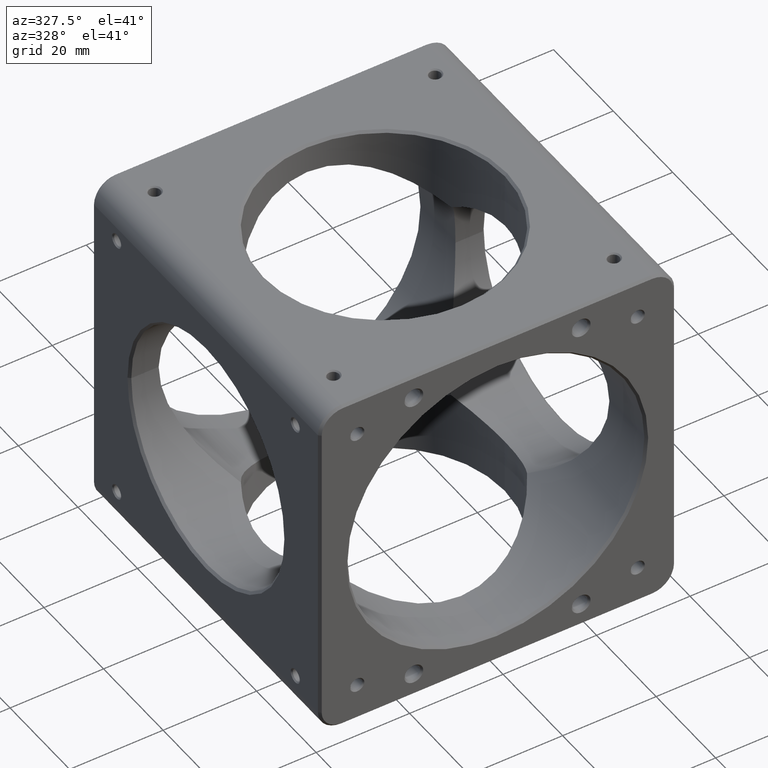
[diagram: clean part render]
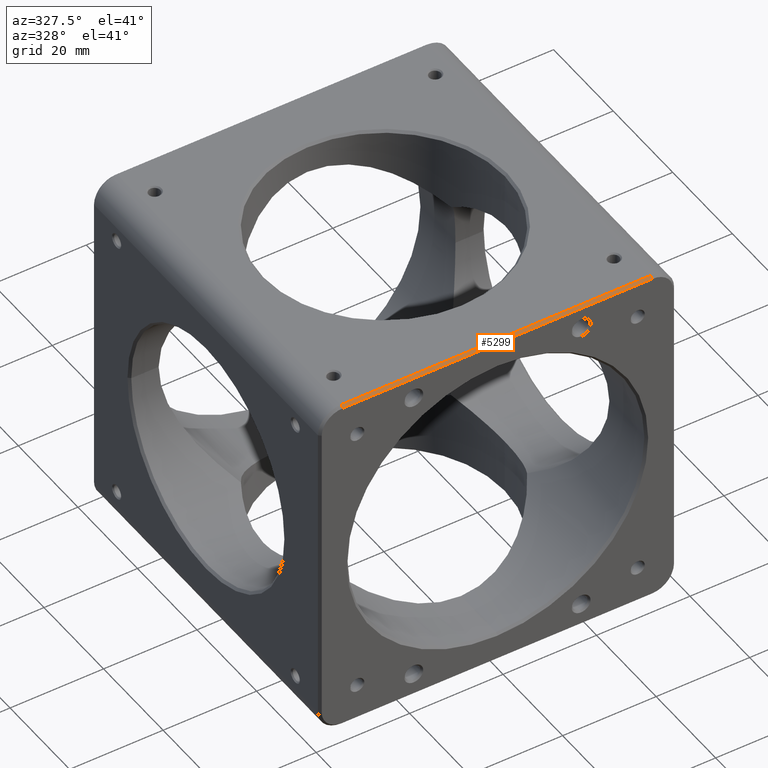
[diagram: same view with one face highlighted and labeled with its STEP entity id]
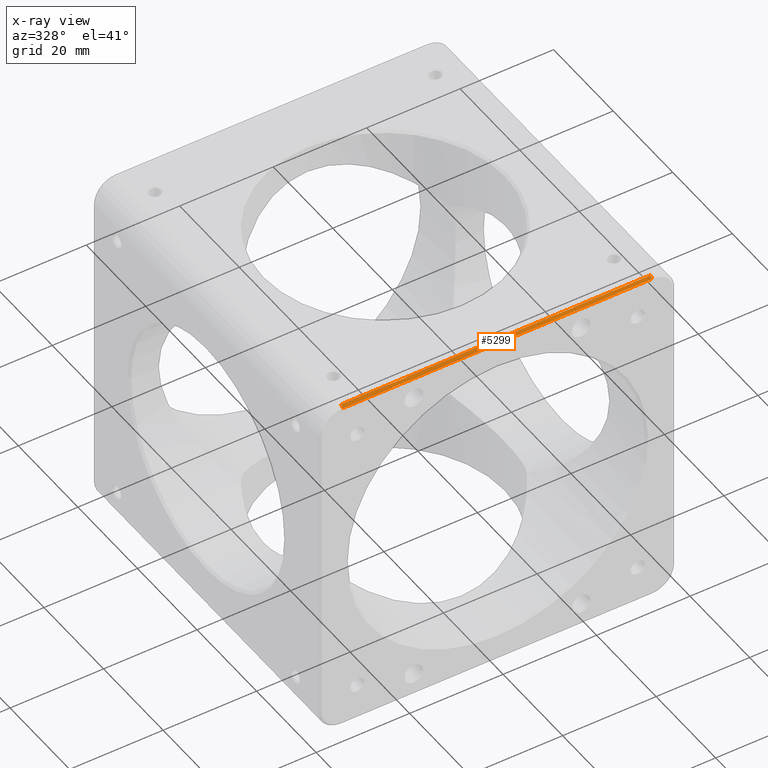
[diagram: x-ray of the same camera — body ghosted, the highlighted face saturated]
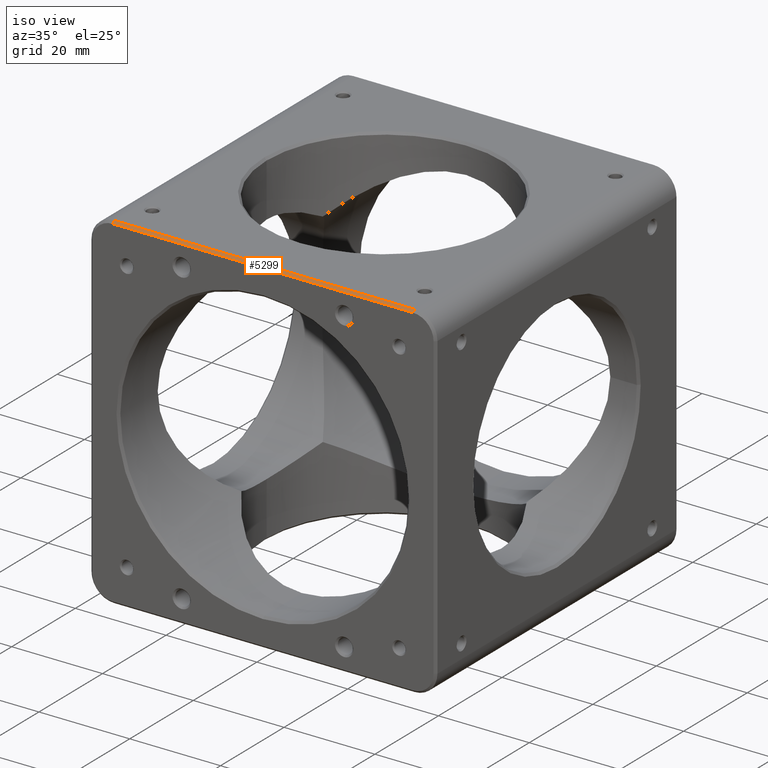
[diagram: same view with one face highlighted and labeled with its STEP entity id]
A machine part, auxiliary view. The second image highlights one B-rep face of the part: STEP entity #5299.
The next image is the same camera in x-ray: the body ghosted, the highlighted face saturated — about 0% of this face is hidden behind the body in this view.
A second angle (iso view) of the same face is appended — the face is thin or edge-on in the first view.
In plain terms, the highlighted planar face has unit normal (-0, -0.7071, 0.7071).
Its self-contained STEP definition (entity closure, byte-faithful):
#41 = ORIENTED_EDGE ( 'NONE', *, *, #5820, .T. ) ;
#46 = CARTESIAN_POINT ( 'NONE',  ( 0.0000000000000000000, -37.60000000000000853, 38.10000000000000142 ) ) ;
#58 = VERTEX_POINT ( 'NONE', #4810 ) ;
#267 = VECTOR ( 'NONE', #5496, 1000.000000000000114 ) ;
#650 = LINE ( 'NONE', #3424, #4330 ) ;
#837 = CARTESIAN_POINT ( 'NONE',  ( 33.10000000000000853, -37.60000000000002274, 38.10000000000000142 ) ) ;
#993 = VECTOR ( 'NONE', #5223, 1000.000000000000000 ) ;
#1907 = DIRECTION ( 'NONE',  ( -0.0000000000000000000, -0.7071067811865475727, 0.7071067811865475727 ) ) ;
#2195 = EDGE_CURVE ( 'NONE', #4326, #2331, #4042, .T. ) ;
#2331 = VERTEX_POINT ( 'NONE', #837 ) ;
#2519 = VERTEX_POINT ( 'NONE', #5238 ) ;
#3031 = DIRECTION ( 'NONE',  ( 1.000000000000000000, 0.0000000000000000000, 0.0000000000000000000 ) ) ;
#3381 = DIRECTION ( 'NONE',  ( 0.0000000000000000000, -0.7071067811865573427, -0.7071067811865376918 ) ) ;
#3424 = CARTESIAN_POINT ( 'NONE',  ( 33.09999999999998721, -37.60000000000000853, 38.10000000000000142 ) ) ;
#3733 = ORIENTED_EDGE ( 'NONE', *, *, #6116, .F. ) ;
#3820 = CARTESIAN_POINT ( 'NONE',  ( -33.09999999999999432, -38.10000000000000853, 37.60000000000000142 ) ) ;
#3837 = DIRECTION ( 'NONE',  ( -1.000000000000000000, 0.0000000000000000000, -0.0000000000000000000 ) ) ;
#4042 = LINE ( 'NONE', #4488, #267 ) ;
#4176 = LINE ( 'NONE', #5755, #4915 ) ;
#4326 = VERTEX_POINT ( 'NONE', #5688 ) ;
#4330 = VECTOR ( 'NONE', #3031, 1000.000000000000000 ) ;
#4350 = EDGE_CURVE ( 'NONE', #2519, #2331, #650, .T. ) ;
#4488 = CARTESIAN_POINT ( 'NONE',  ( 33.10000000000000853, -38.10000000000000853, 37.60000000000002984 ) ) ;
#4616 = LINE ( 'NONE', #3820, #993 ) ;
#4810 = CARTESIAN_POINT ( 'NONE',  ( -33.09999999999999432, -38.10000000000000853, 37.60000000000002984 ) ) ;
#4915 = VECTOR ( 'NONE', #3381, 1000.000000000000114 ) ;
#5202 = ORIENTED_EDGE ( 'NONE', *, *, #4350, .F. ) ;
#5223 = DIRECTION ( 'NONE',  ( -1.000000000000000000, 0.0000000000000000000, 0.0000000000000000000 ) ) ;
#5231 = AXIS2_PLACEMENT_3D ( 'NONE', #46, #1907, #3837 ) ;
#5238 = CARTESIAN_POINT ( 'NONE',  ( -33.09999999999999432, -37.60000000000002274, 38.10000000000000142 ) ) ;
#5299 = ADVANCED_FACE ( 'NONE', ( #5662 ), #5679, .T. ) ;
#5496 = DIRECTION ( 'NONE',  ( 0.0000000000000000000, 0.7071067811865573427, 0.7071067811865376918 ) ) ;
#5662 = FACE_OUTER_BOUND ( 'NONE', #6091, .T. ) ;
#5679 = PLANE ( 'NONE',  #5231 ) ;
#5688 = CARTESIAN_POINT ( 'NONE',  ( 33.10000000000000853, -38.10000000000000853, 37.60000000000000142 ) ) ;
#5751 = ORIENTED_EDGE ( 'NONE', *, *, #2195, .T. ) ;
#5755 = CARTESIAN_POINT ( 'NONE',  ( -33.09999999999999432, -37.60000000000002274, 38.10000000000000142 ) ) ;
#5820 = EDGE_CURVE ( 'NONE', #2519, #58, #4176, .T. ) ;
#6091 = EDGE_LOOP ( 'NONE', ( #41, #3733, #5751, #5202 ) ) ;
#6116 = EDGE_CURVE ( 'NONE', #4326, #58, #4616, .T. ) ;